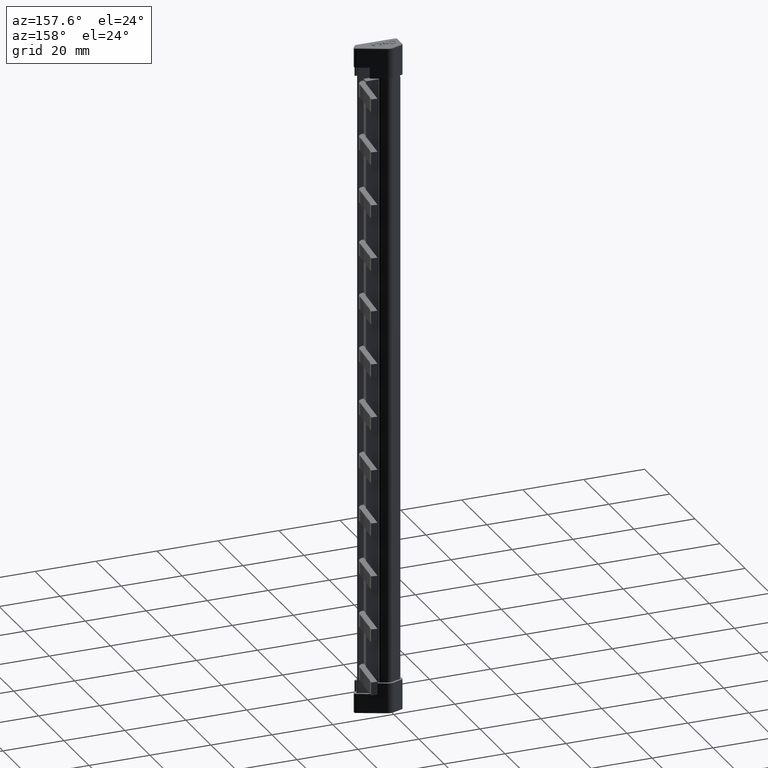
[diagram: clean part render]
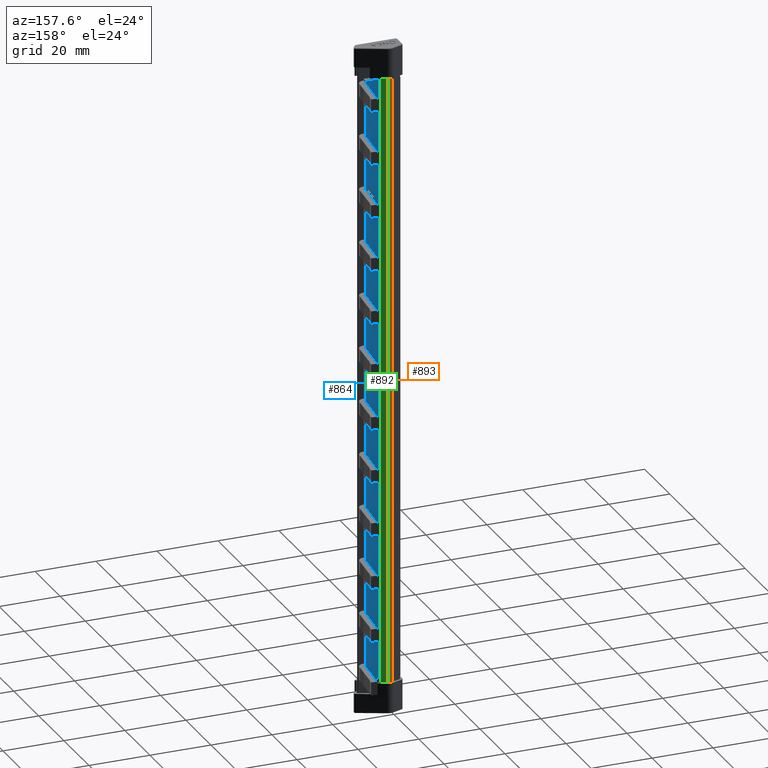
[diagram: same view with three faces highlighted in distinct colors, each labeled with its STEP entity id]
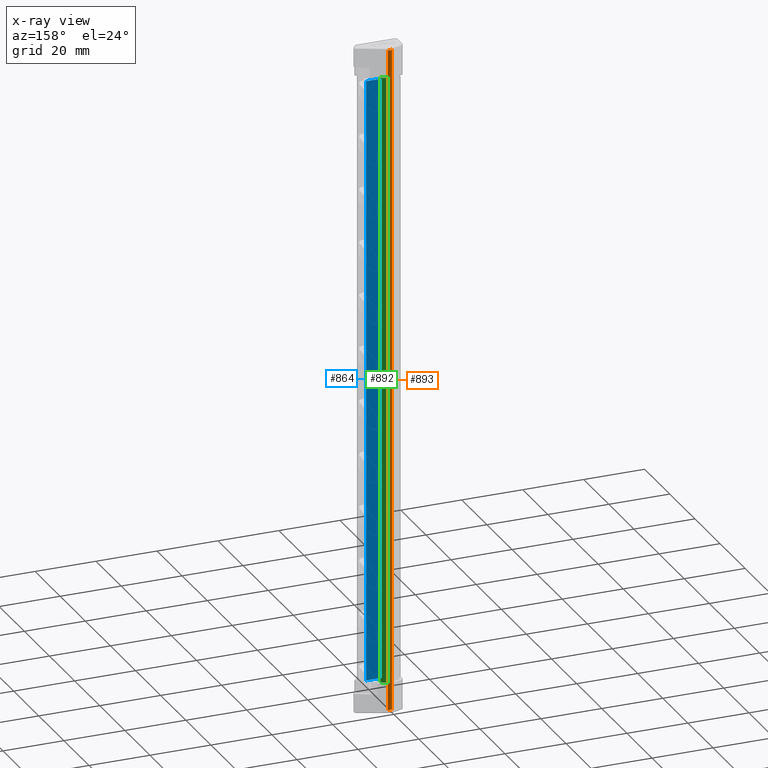
[diagram: x-ray of the same camera — body ghosted, the three highlighted faces saturated]
A machine part, auxiliary view with three faces highlighted in distinct colors.
The next image is the same camera in x-ray (body ghosted, the three faces saturated) — at least one of them is partly hidden behind the body in this view.
Their STEP definitions:

[orange] entity #893 — the highlighted cylindrical surface (edge-blend (fillet) strip) has radius 1.8 mm, axis along (0, 0, 1).
#38 = B_SPLINE_CURVE_WITH_KNOTS ( 'NONE', 3,
 ( #17953, #17915, #18013, #18005 ),
 .UNSPECIFIED., .F., .F.,
 ( 4, 4 ),
 ( 0.0000000000000000000, 1.000000000000000000 ),
 .UNSPECIFIED. ) ;
#42 = B_SPLINE_CURVE_WITH_KNOTS ( 'NONE', 3,
 ( #9368, #9375, #9369, #9396 ),
 .UNSPECIFIED., .F., .F.,
 ( 4, 4 ),
 ( 0.0000000000000000000, 1.000000000000000000 ),
 .UNSPECIFIED. ) ;
#44 = B_SPLINE_CURVE_WITH_KNOTS ( 'NONE', 3,
 ( #9422, #9444, #9427, #9445, #9423, #9442 ),
 .UNSPECIFIED., .F., .F.,
 ( 4, 2, 4 ),
 ( 0.0000000000000000000, 0.5000000000000000000, 1.000000000000000000 ),
 .UNSPECIFIED. ) ;
#59 = B_SPLINE_CURVE_WITH_KNOTS ( 'NONE', 3,
 ( #9415, #9411, #9405, #9414, #9416, #9413 ),
 .UNSPECIFIED., .F., .F.,
 ( 4, 2, 4 ),
 ( 0.0000000000000000000, 0.5000000000000000000, 1.000000000000000000 ),
 .UNSPECIFIED. ) ;
#406 = DIRECTION ( 'NONE',  ( 1.174935236590071400E-018, 5.041208906165829300E-019, 1.000000000000000000 ) ) ;
#408 = FACE_OUTER_BOUND ( 'NONE', #20537, .T. ) ;
#428 = DIRECTION ( 'NONE',  ( 1.000000000000000000, 0.0000000000000000000, 0.0000000000000000000 ) ) ;
#439 = CYLINDRICAL_SURFACE ( 'NONE', #4693, 1.799999999999999600 ) ;
#441 = CARTESIAN_POINT ( 'NONE',  ( 3.299859964215051900, 3.399950350504472100, 219.0101000000001100 ) ) ;
#893 = ADVANCED_FACE ( 'NONE', ( #408 ), #439, .T. ) ;
#4693 = AXIS2_PLACEMENT_3D ( 'NONE', #441, #406, #428 ) ;
#7174 = EDGE_CURVE ( 'NONE', #18835, #18637, #42, .T. ) ;
#7182 = EDGE_CURVE ( 'NONE', #18805, #18835, #59, .T. ) ;
#7183 = EDGE_CURVE ( 'NONE', #18851, #18704, #44, .T. ) ;
#7196 = EDGE_CURVE ( 'NONE', #18704, #18805, #9483, .T. ) ;
#7549 = EDGE_CURVE ( 'NONE', #18637, #18685, #17872, .T. ) ;
#7572 = EDGE_CURVE ( 'NONE', #18685, #18851, #38, .T. ) ;
#7977 = CARTESIAN_POINT ( 'NONE',  ( 4.023631279084796100, 5.048082173105156800, 219.0000000000000000 ) ) ;
#8010 = CARTESIAN_POINT ( 'NONE',  ( 4.023631279084801400, 5.048082173105153300, -2.801990723505406800E-019 ) ) ;
#8064 = CARTESIAN_POINT ( 'NONE',  ( 2.699069105447882600, 5.096726809383278900, -9.966008085483487900E-020 ) ) ;
#8067 = CARTESIAN_POINT ( 'NONE',  ( 2.699069105447750200, 5.096726809383232700, 219.0000000000000000 ) ) ;
#9286 = CARTESIAN_POINT ( 'NONE',  ( 2.698998958767269600, 5.096701968602029200, 9.099999999999857500 ) ) ;
#9287 = CARTESIAN_POINT ( 'NONE',  ( 2.698998958722938800, 5.096701968994282500, 209.9000000000000100 ) ) ;
#9368 = CARTESIAN_POINT ( 'NONE',  ( 2.699069105447882600, 5.096726809383278900, -9.966008085483487900E-020 ) ) ;
#9369 = CARTESIAN_POINT ( 'NONE',  ( 2.699022341247792500, 5.096710248498982100, 6.066666666666609600 ) ) ;
#9375 = CARTESIAN_POINT ( 'NONE',  ( 2.699045723604613900, 5.096718528216144700, 3.033333333333304800 ) ) ;
#9396 = CARTESIAN_POINT ( 'NONE',  ( 2.698998958767269600, 5.096701968602029200, 9.099999999999857500 ) ) ;
#9405 = CARTESIAN_POINT ( 'NONE',  ( 3.592060499824393000, 5.190424622863367300, -1.245932190245549900E-018 ) ) ;
#9411 = CARTESIAN_POINT ( 'NONE',  ( 3.816475453716346800, 5.138998282275427900, -1.483680134572601100E-018 ) ) ;
#9413 = CARTESIAN_POINT ( 'NONE',  ( 2.699069105447882600, 5.096726809383278900, -9.966008085483487900E-020 ) ) ;
#9414 = CARTESIAN_POINT ( 'NONE',  ( 3.139909177008440600, 5.207046091925352700, -7.230628985851610700E-019 ) ) ;
#9415 = CARTESIAN_POINT ( 'NONE',  ( 4.023631279084801400, 5.048082173105153300, -2.801990723505406800E-019 ) ) ;
#9416 = CARTESIAN_POINT ( 'NONE',  ( 2.912324085630392500, 5.172235659307521200, -4.381164891084703300E-019 ) ) ;
#9422 = CARTESIAN_POINT ( 'NONE',  ( 2.699069105447750200, 5.096726809383232700, 219.0000000000000000 ) ) ;
#9423 = CARTESIAN_POINT ( 'NONE',  ( 3.816475453716335200, 5.138998282275432300, 219.0000000000000300 ) ) ;
#9427 = CARTESIAN_POINT ( 'NONE',  ( 3.139909177008384200, 5.207046091925352700, 219.0000000000000300 ) ) ;
#9442 = CARTESIAN_POINT ( 'NONE',  ( 4.023631279084796100, 5.048082173105156800, 219.0000000000000000 ) ) ;
#9444 = CARTESIAN_POINT ( 'NONE',  ( 2.912324085630321400, 5.172235659307507800, 218.9999999999999400 ) ) ;
#9445 = CARTESIAN_POINT ( 'NONE',  ( 3.592060499824365000, 5.190424622863373500, 218.9999999999999700 ) ) ;
#9458 = CARTESIAN_POINT ( 'NONE',  ( 4.023610794510737800, 5.048035522953489900, 219.0000000000000000 ) ) ;
#9464 = DIRECTION ( 'NONE',  ( -3.755450426763440500E-019, -8.551702964775421900E-019, -1.000000000000000000 ) ) ;
#9483 = LINE ( 'NONE', #9458, #21211 ) ;
#15392 = ORIENTED_EDGE ( 'NONE', *, *, #7572, .T. ) ;
#15393 = ORIENTED_EDGE ( 'NONE', *, *, #7549, .T. ) ;
#15401 = ORIENTED_EDGE ( 'NONE', *, *, #7183, .T. ) ;
#15411 = ORIENTED_EDGE ( 'NONE', *, *, #7174, .T. ) ;
#15444 = ORIENTED_EDGE ( 'NONE', *, *, #7182, .T. ) ;
#15452 = ORIENTED_EDGE ( 'NONE', *, *, #7196, .T. ) ;
#17872 = LINE ( 'NONE', #17893, #21987 ) ;
#17873 = DIRECTION ( 'NONE',  ( 1.174935236590071400E-018, 5.041208906165829300E-019, 1.000000000000000000 ) ) ;
#17893 = CARTESIAN_POINT ( 'NONE',  ( 2.698998959062129300, 5.096701968298490600, 219.0101000000001100 ) ) ;
#17915 = CARTESIAN_POINT ( 'NONE',  ( 2.699022341137820000, 5.096710248460040800, 212.9333333333333400 ) ) ;
#17953 = CARTESIAN_POINT ( 'NONE',  ( 2.698998958722938800, 5.096701968994282500, 209.9000000000000100 ) ) ;
#18005 = CARTESIAN_POINT ( 'NONE',  ( 2.699069105447750200, 5.096726809383232700, 219.0000000000000000 ) ) ;
#18013 = CARTESIAN_POINT ( 'NONE',  ( 2.699045723549547300, 5.096718528196647400, 215.9666666666666700 ) ) ;
#18637 = VERTEX_POINT ( 'NONE', #9286 ) ;
#18685 = VERTEX_POINT ( 'NONE', #9287 ) ;
#18704 = VERTEX_POINT ( 'NONE', #7977 ) ;
#18805 = VERTEX_POINT ( 'NONE', #8010 ) ;
#18835 = VERTEX_POINT ( 'NONE', #8064 ) ;
#18851 = VERTEX_POINT ( 'NONE', #8067 ) ;
#20537 = EDGE_LOOP ( 'NONE', ( #15452, #15444, #15411, #15393, #15392, #15401 ) ) ;
#21211 = VECTOR ( 'NONE', #9464, 1000.000000000000000 ) ;
#21987 = VECTOR ( 'NONE', #17873, 1000.000000000000000 ) ;

[blue] entity #864 — the highlighted planar face has unit normal (-0, -1, 0).
#220 = PLANE ( 'NONE',  #4656 ) ;
#221 = FACE_OUTER_BOUND ( 'NONE', #20502, .T. ) ;
#260 = DIRECTION ( 'NONE',  ( 0.0000000000000000000, -2.593268936129210100E-023, -1.000000000000000000 ) ) ;
#267 = DIRECTION ( 'NONE',  ( -4.379063324521068500E-047, -1.000000000000000000, 2.593268936129210100E-023 ) ) ;
#275 = CARTESIAN_POINT ( 'NONE',  ( 0.5999928904455424900, 3.100000585347644200, 207.9000000000000100 ) ) ;
#864 = ADVANCED_FACE ( 'NONE', ( #221 ), #220, .F. ) ;
#3098 = EDGE_CURVE ( 'NONE', #18649, #18723, #9820, .T. ) ;
#3140 = EDGE_CURVE ( 'NONE', #18723, #18529, #9912, .T. ) ;
#3231 = EDGE_CURVE ( 'NONE', #18662, #18649, #10125, .T. ) ;
#4656 = AXIS2_PLACEMENT_3D ( 'NONE', #275, #267, #260 ) ;
#7557 = EDGE_CURVE ( 'NONE', #18529, #18662, #17957, .T. ) ;
#7989 = CARTESIAN_POINT ( 'NONE',  ( 10.37430495582724400, 3.100000585347644200, 209.0000000000000000 ) ) ;
#9230 = CARTESIAN_POINT ( 'NONE',  ( 5.839261004356521800, 3.100000585347644200, 209.0000000000000300 ) ) ;
#9274 = CARTESIAN_POINT ( 'NONE',  ( 10.37430495582721900, 3.100000585347644200, 9.999999999999982200 ) ) ;
#9299 = CARTESIAN_POINT ( 'NONE',  ( 5.839261004356521800, 3.100000585347644200, 9.999999999999980500 ) ) ;
#9814 = CARTESIAN_POINT ( 'NONE',  ( 10.37430495582721900, 3.100000585347644200, 207.9000000000000100 ) ) ;
#9820 = LINE ( 'NONE', #9814, #13534 ) ;
#9828 = DIRECTION ( 'NONE',  ( -0.0000000000000000000, 2.593268936129210100E-023, 1.000000000000000000 ) ) ;
#9909 = DIRECTION ( 'NONE',  ( -1.000000000000000000, 4.379063324521068500E-047, -1.135608888882319300E-069 ) ) ;
#9912 = LINE ( 'NONE', #9918, #13591 ) ;
#9918 = CARTESIAN_POINT ( 'NONE',  ( 0.5999928904455424900, 3.100000585347644200, 209.0000000000000000 ) ) ;
#10097 = CARTESIAN_POINT ( 'NONE',  ( 0.5999928904455424900, 3.100000585347644200, 9.999999999999980500 ) ) ;
#10111 = DIRECTION ( 'NONE',  ( 1.000000000000000000, -4.379063324521068500E-047, 1.135608888882319300E-069 ) ) ;
#10125 = LINE ( 'NONE', #10097, #13600 ) ;
#13534 = VECTOR ( 'NONE', #9828, 1000.000000000000000 ) ;
#13591 = VECTOR ( 'NONE', #9909, 1000.000000000000000 ) ;
#13600 = VECTOR ( 'NONE', #10111, 1000.000000000000000 ) ;
#15102 = ORIENTED_EDGE ( 'NONE', *, *, #7557, .F. ) ;
#15103 = ORIENTED_EDGE ( 'NONE', *, *, #3231, .F. ) ;
#15114 = ORIENTED_EDGE ( 'NONE', *, *, #3098, .F. ) ;
#15116 = ORIENTED_EDGE ( 'NONE', *, *, #3140, .F. ) ;
#17929 = DIRECTION ( 'NONE',  ( -1.174935236590071000E-018, -5.041208906165829300E-019, -1.000000000000000000 ) ) ;
#17944 = CARTESIAN_POINT ( 'NONE',  ( 5.839261004356521800, 3.100000585347644200, 219.0000000000000000 ) ) ;
#17957 = LINE ( 'NONE', #17944, #22121 ) ;
#18529 = VERTEX_POINT ( 'NONE', #9230 ) ;
#18649 = VERTEX_POINT ( 'NONE', #9274 ) ;
#18662 = VERTEX_POINT ( 'NONE', #9299 ) ;
#18723 = VERTEX_POINT ( 'NONE', #7989 ) ;
#20502 = EDGE_LOOP ( 'NONE', ( #15103, #15102, #15116, #15114 ) ) ;
#22121 = VECTOR ( 'NONE', #17929, 1000.000000000000000 ) ;

[green] entity #892 — the highlighted planar face has unit normal (-0.4021, -0.9156, 0).
#33 = B_SPLINE_CURVE_WITH_KNOTS ( 'NONE', 3,
 ( #17921, #17971, #17996, #18010 ),
 .UNSPECIFIED., .F., .F.,
 ( 4, 4 ),
 ( 0.0000000000000000000, 1.000000000000000000 ),
 .UNSPECIFIED. ) ;
#60 = B_SPLINE_CURVE_WITH_KNOTS ( 'NONE', 3,
 ( #9438, #9439, #9446, #9440 ),
 .UNSPECIFIED., .F., .F.,
 ( 4, 4 ),
 ( 0.0000000000000000000, 1.000000000000000000 ),
 .UNSPECIFIED. ) ;
#395 = PLANE ( 'NONE',  #4712 ) ;
#397 = CARTESIAN_POINT ( 'NONE',  ( 6.060405160155347000, 4.153584405884049400, 219.0000000000000000 ) ) ;
#412 = FACE_OUTER_BOUND ( 'NONE', #20526, .T. ) ;
#419 = DIRECTION ( 'NONE',  ( 0.9156028725539479000, -0.4020837969515297400, 0.0000000000000000000 ) ) ;
#423 = DIRECTION ( 'NONE',  ( -0.4020837969515297400, -0.9156028725539479000, 9.339969566632776300E-019 ) ) ;
#892 = ADVANCED_FACE ( 'NONE', ( #412 ), #395, .F. ) ;
#4712 = AXIS2_PLACEMENT_3D ( 'NONE', #397, #423, #419 ) ;
#7146 = EDGE_CURVE ( 'NONE', #18726, #18775, #10397, .T. ) ;
#7175 = EDGE_CURVE ( 'NONE', #18803, #18726, #9370, .T. ) ;
#7184 = EDGE_CURVE ( 'NONE', #18789, #18756, #9425, .T. ) ;
#7185 = EDGE_CURVE ( 'NONE', #18756, #18793, #9407, .T. ) ;
#7187 = EDGE_CURVE ( 'NONE', #18789, #18805, #60, .T. ) ;
#7195 = EDGE_CURVE ( 'NONE', #18793, #18803, #9462, .T. ) ;
#7196 = EDGE_CURVE ( 'NONE', #18704, #18805, #9483, .T. ) ;
#7567 = EDGE_CURVE ( 'NONE', #18704, #18775, #33, .T. ) ;
#7955 = CARTESIAN_POINT ( 'NONE',  ( 6.060407360193904600, 4.153583439744805300, 9.099999999999987200 ) ) ;
#7971 = CARTESIAN_POINT ( 'NONE',  ( 4.041246672141803700, 5.040290789015857700, 219.0000000000000000 ) ) ;
#7977 = CARTESIAN_POINT ( 'NONE',  ( 4.023631279084796100, 5.048082173105156800, 219.0000000000000000 ) ) ;
#7985 = CARTESIAN_POINT ( 'NONE',  ( 4.041246672134449500, 5.040290789019118200, 9.548399082232436500E-027 ) ) ;
#7986 = CARTESIAN_POINT ( 'NONE',  ( 4.041246672143014300, 5.040290789015315900, 209.9000000000000100 ) ) ;
#8001 = CARTESIAN_POINT ( 'NONE',  ( 4.041246672139106300, 5.040290789017037200, 9.099999999999955200 ) ) ;
#8007 = CARTESIAN_POINT ( 'NONE',  ( 6.060406586742852900, 4.153583779403139600, 209.9000000000000100 ) ) ;
#8010 = CARTESIAN_POINT ( 'NONE',  ( 4.023631279084801400, 5.048082173105153300, -2.801990723505406800E-019 ) ) ;
#9317 = DIRECTION ( 'NONE',  ( 3.755450426763440500E-019, 8.551702964775421900E-019, 1.000000000000000000 ) ) ;
#9370 = LINE ( 'NONE', #9385, #14460 ) ;
#9385 = CARTESIAN_POINT ( 'NONE',  ( 6.060406328925833600, 4.153583892622581400, 209.9000000000000100 ) ) ;
#9386 = DIRECTION ( 'NONE',  ( -0.9156028725539479000, 0.4020837969515295700, 0.0000000000000000000 ) ) ;
#9407 = LINE ( 'NONE', #9432, #14173 ) ;
#9425 = LINE ( 'NONE', #9436, #14079 ) ;
#9428 = DIRECTION ( 'NONE',  ( 0.9156028725539427900, -0.4020837969515412300, 0.0000000000000000000 ) ) ;
#9430 = DIRECTION ( 'NONE',  ( 3.755450426763440500E-019, 8.551702964775421900E-019, 1.000000000000000000 ) ) ;
#9432 = CARTESIAN_POINT ( 'NONE',  ( 4.041246672138879800, 5.040290789017137600, 9.099999999999997900 ) ) ;
#9436 = CARTESIAN_POINT ( 'NONE',  ( 4.041246672134434400, 5.040290789019083600, 219.0000000000000000 ) ) ;
#9438 = CARTESIAN_POINT ( 'NONE',  ( 4.041246672134449500, 5.040290789019118200, 9.548399082232436500E-027 ) ) ;
#9439 = CARTESIAN_POINT ( 'NONE',  ( 4.035368046259888400, 5.042872366997209500, 0.0000000000000000000 ) ) ;
#9440 = CARTESIAN_POINT ( 'NONE',  ( 4.023631279084801400, 5.048082173105153300, -2.801990723505406800E-019 ) ) ;
#9446 = CARTESIAN_POINT ( 'NONE',  ( 4.029489420385342400, 5.045453944975336400, 0.0000000000000000000 ) ) ;
#9455 = CARTESIAN_POINT ( 'NONE',  ( 6.060407360193909000, 4.153583439744815000, 219.0000000000000000 ) ) ;
#9458 = CARTESIAN_POINT ( 'NONE',  ( 4.023610794510737800, 5.048035522953489900, 219.0000000000000000 ) ) ;
#9462 = LINE ( 'NONE', #9455, #21209 ) ;
#9464 = DIRECTION ( 'NONE',  ( -3.755450426763440500E-019, -8.551702964775421900E-019, -1.000000000000000000 ) ) ;
#9471 = DIRECTION ( 'NONE',  ( 3.755450426763440500E-019, 8.551702964775421900E-019, 1.000000000000000000 ) ) ;
#9483 = LINE ( 'NONE', #9458, #21211 ) ;
#10392 = CARTESIAN_POINT ( 'NONE',  ( 4.041246672141799200, 5.040290789015849700, 219.0000000000000000 ) ) ;
#10397 = LINE ( 'NONE', #10392, #13627 ) ;
#13627 = VECTOR ( 'NONE', #9317, 1000.000000000000000 ) ;
#14079 = VECTOR ( 'NONE', #9430, 1000.000000000000000 ) ;
#14173 = VECTOR ( 'NONE', #9428, 1000.000000000000100 ) ;
#14460 = VECTOR ( 'NONE', #9386, 1000.000000000000100 ) ;
#15502 = ORIENTED_EDGE ( 'NONE', *, *, #7185, .F. ) ;
#15506 = ORIENTED_EDGE ( 'NONE', *, *, #7196, .F. ) ;
#15508 = ORIENTED_EDGE ( 'NONE', *, *, #7146, .F. ) ;
#15519 = ORIENTED_EDGE ( 'NONE', *, *, #7184, .F. ) ;
#15526 = ORIENTED_EDGE ( 'NONE', *, *, #7567, .T. ) ;
#15569 = ORIENTED_EDGE ( 'NONE', *, *, #7175, .F. ) ;
#15572 = ORIENTED_EDGE ( 'NONE', *, *, #7187, .T. ) ;
#15578 = ORIENTED_EDGE ( 'NONE', *, *, #7195, .F. ) ;
#17921 = CARTESIAN_POINT ( 'NONE',  ( 4.023631279084796100, 5.048082173105156800, 219.0000000000000000 ) ) ;
#17971 = CARTESIAN_POINT ( 'NONE',  ( 4.029489420387798200, 5.045453944974258100, 219.0000000000000000 ) ) ;
#17996 = CARTESIAN_POINT ( 'NONE',  ( 4.035368046264798300, 5.042872366995054800, 219.0000000000000000 ) ) ;
#18010 = CARTESIAN_POINT ( 'NONE',  ( 4.041246672141803700, 5.040290789015857700, 219.0000000000000000 ) ) ;
#18704 = VERTEX_POINT ( 'NONE', #7977 ) ;
#18726 = VERTEX_POINT ( 'NONE', #7986 ) ;
#18756 = VERTEX_POINT ( 'NONE', #8001 ) ;
#18775 = VERTEX_POINT ( 'NONE', #7971 ) ;
#18789 = VERTEX_POINT ( 'NONE', #7985 ) ;
#18793 = VERTEX_POINT ( 'NONE', #7955 ) ;
#18803 = VERTEX_POINT ( 'NONE', #8007 ) ;
#18805 = VERTEX_POINT ( 'NONE', #8010 ) ;
#20526 = EDGE_LOOP ( 'NONE', ( #15569, #15578, #15502, #15519, #15572, #15506, #15526, #15508 ) ) ;
#21209 = VECTOR ( 'NONE', #9471, 1000.000000000000000 ) ;
#21211 = VECTOR ( 'NONE', #9464, 1000.000000000000000 ) ;